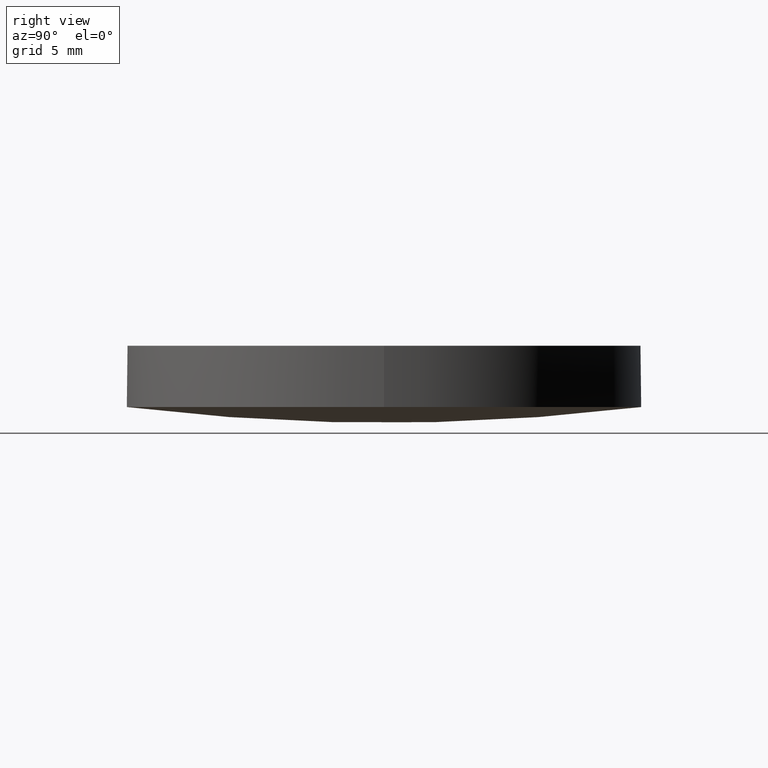
[diagram: clean part render]
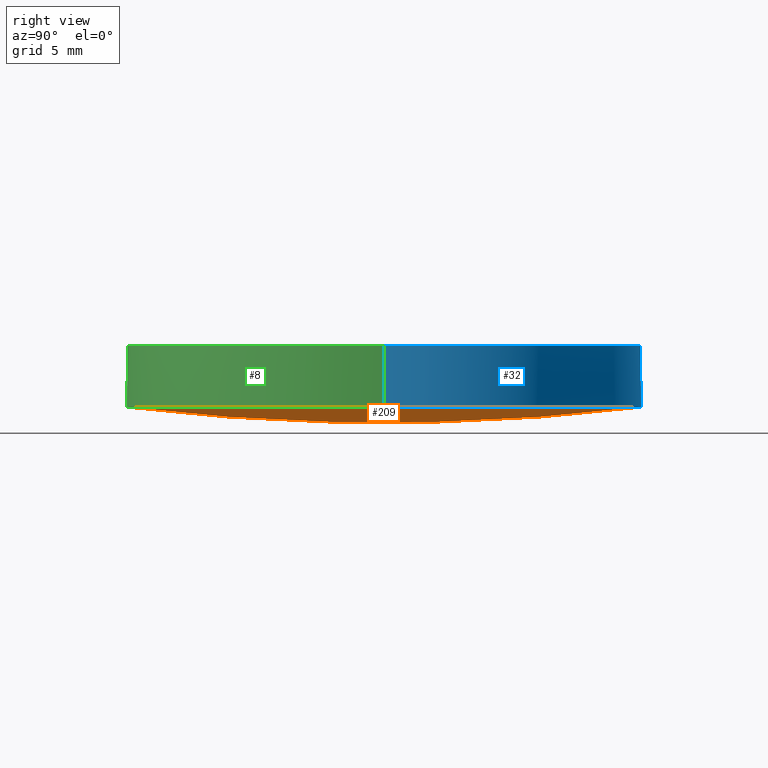
[diagram: same view with three faces highlighted in distinct colors, each labeled with its STEP entity id]
A machine part, right view with three faces highlighted in distinct colors.
Their STEP definitions:

[orange] entity #209 — the highlighted face is a freeform B-spline surface patch.
#1 = AXIS2_PLACEMENT_3D ( 'NONE', #111, #147, #37 ) ;
#2 = CARTESIAN_POINT ( 'NONE',  ( -7.141133360578974500E-015, 12.85163307389536200, 0.7925073641889823800 ) ) ;
#4 = CARTESIAN_POINT ( 'NONE',  ( 4.282779587646916600, 4.305625555928885200, -0.2655102227782195600 ) ) ;
#5 = EDGE_LOOP ( 'NONE', ( #163, #85, #60 ) ) ;
#6 = CARTESIAN_POINT ( 'NONE',  ( -7.187737991352404900E-015, 12.70000000000003700, 0.7738472252775887600 ) ) ;
#17 = EDGE_CURVE ( 'NONE', #134, #123, #68, .T. ) ;
#20 = CARTESIAN_POINT ( 'NONE',  ( 12.69999999999999900, 2.442490654175340100E-015, 0.7738472252775809900 ) ) ;
#25 = CARTESIAN_POINT ( 'NONE',  ( 4.996003610813200500E-016, 2.442490654175340100E-015, 0.7738472252775809900 ) ) ;
#37 = DIRECTION ( 'NONE',  ( 1.000000000000000000, -8.881784197001252300E-016, 0.0000000000000000000 ) ) ;
#40 = CARTESIAN_POINT ( 'NONE',  ( 4.282779587646913900, -4.305625555928871900, -0.2655102227782205600 ) ) ;
#52 = CARTESIAN_POINT ( 'NONE',  ( 8.471195892815243800, 12.85163307389535900, 1.051903366798575500 ) ) ;
#60 = ORIENTED_EDGE ( 'NONE', *, *, #17, .T. ) ;
#66 = CIRCLE ( 'NONE', #232, 12.69999999999999900 ) ;
#68 = CIRCLE ( 'NONE', #1, 12.69999999999999900 ) ;
#72 = FACE_OUTER_BOUND ( 'NONE', #5, .T. ) ;
#73 = DIRECTION ( 'NONE',  ( -0.0000000000000000000, -0.0000000000000000000, -1.000000000000000000 ) ) ;
#74 = CARTESIAN_POINT ( 'NONE',  ( 8.557535269768374400, -4.305625555928873600, -0.003470427068712200700 ) ) ;
#85 = ORIENTED_EDGE ( 'NONE', *, *, #217, .T. ) ;
#86 = EDGE_CURVE ( 'NONE', #123, #165, #66, .T. ) ;
#93 =( BOUNDED_SURFACE ( )  B_SPLINE_SURFACE ( 3, 3, ( 
 ( #135, #153, #188, #119 ),
 ( #219, #40, #74, #116 ),
 ( #94, #4, #118, #136 ),
 ( #2, #178, #52, #199 ) ),
 .UNSPECIFIED., .F., .F., .F. ) 
 B_SPLINE_SURFACE_WITH_KNOTS ( ( 4, 4 ),
 ( 4, 4 ),
 ( 0.0000000000000000000, 1.000000000000000000 ),
 ( 0.0000000000000000000, 1.000000000000000000 ),
 .UNSPECIFIED. ) 
 GEOMETRIC_REPRESENTATION_ITEM ( )  RATIONAL_B_SPLINE_SURFACE ( (
 ( 1.000000000000000000, 0.9987509816368461700, 0.9987509816368461700, 1.000000000000000000),
 ( 0.9949489651740663900, 0.9937062556461631100, 0.9937062556461631100, 0.9949489651740663900),
 ( 0.9949489651740663900, 0.9937062556461631100, 0.9937062556461631100, 0.9949489651740663900),
 ( 1.000000000000000000, 0.9987509816368461700, 0.9987509816368461700, 1.000000000000000000) ) ) 
 REPRESENTATION_ITEM ( '' )  SURFACE ( )  );
#94 = CARTESIAN_POINT ( 'NONE',  ( -9.769281548708849800E-015, 4.305625555928887000, -0.2655102227782184500 ) ) ;
#95 = CARTESIAN_POINT ( 'NONE',  ( -1.424402699795791500E-014, -12.70000000000002100, 0.7738472252775887600 ) ) ;
#111 = CARTESIAN_POINT ( 'NONE',  ( 4.996003610813200500E-016, 2.442490654175340100E-015, 0.7738472252775809900 ) ) ;
#116 = CARTESIAN_POINT ( 'NONE',  ( 12.80824930132946300, -4.305625555928874500, 0.5196272868001470300 ) ) ;
#118 = CARTESIAN_POINT ( 'NONE',  ( 8.557535269768378000, 4.305625555928883400, -0.003470427068711117400 ) ) ;
#119 = CARTESIAN_POINT ( 'NONE',  ( 12.67902327658330600, -12.85163307389535000, 1.569723400905997000 ) ) ;
#123 = VERTEX_POINT ( 'NONE', #20 ) ;
#134 = VERTEX_POINT ( 'NONE', #6 ) ;
#135 = CARTESIAN_POINT ( 'NONE',  ( -1.428167172091404300E-014, -12.85163307389534600, 0.7925073641889823800 ) ) ;
#136 = CARTESIAN_POINT ( 'NONE',  ( 12.80824930132946300, 4.305625555928883400, 0.5196272868001481400 ) ) ;
#143 = AXIS2_PLACEMENT_3D ( 'NONE', #186, #198, #150 ) ;
#147 = DIRECTION ( 'NONE',  ( -0.0000000000000000000, -0.0000000000000000000, -1.000000000000000000 ) ) ;
#149 = DIRECTION ( 'NONE',  ( 1.000000000000000000, 0.0000000000000000000, 0.0000000000000000000 ) ) ;
#150 = DIRECTION ( 'NONE',  ( -2.778066538033659800E-016, -1.000000000000000000, 0.0000000000000000000 ) ) ;
#153 = CARTESIAN_POINT ( 'NONE',  ( 4.239569421452055000, -12.85163307389534800, 0.7925073641889814900 ) ) ;
#163 = ORIENTED_EDGE ( 'NONE', *, *, #86, .T. ) ;
#165 = VERTEX_POINT ( 'NONE', #95 ) ;
#178 = CARTESIAN_POINT ( 'NONE',  ( 4.239569421452062100, 12.85163307389535900, 0.7925073641889814900 ) ) ;
#185 = CIRCLE ( 'NONE', #143, 104.5999999999999900 ) ;
#186 = CARTESIAN_POINT ( 'NONE',  ( 1.421085471520200100E-014, 1.421085471520200100E-014, 104.5999999999999900 ) ) ;
#188 = CARTESIAN_POINT ( 'NONE',  ( 8.471195892815234900, -12.85163307389534800, 1.051903366798575500 ) ) ;
#198 = DIRECTION ( 'NONE',  ( 1.000000000000000000, -2.778066538033659800E-016, -2.400814875991999800E-016 ) ) ;
#199 = CARTESIAN_POINT ( 'NONE',  ( 12.67902327658331400, 12.85163307389535900, 1.569723400905997000 ) ) ;
#209 = ADVANCED_FACE ( 'NONE', ( #72 ), #93, .T. ) ;
#217 = EDGE_CURVE ( 'NONE', #165, #134, #185, .T. ) ;
#219 = CARTESIAN_POINT ( 'NONE',  ( -1.216154440515456900E-014, -4.305625555928871000, -0.2655102227782195600 ) ) ;
#232 = AXIS2_PLACEMENT_3D ( 'NONE', #25, #73, #149 ) ;

[blue] entity #32 — the highlighted cylindrical surface (partial cylindrical patch) has radius 12.7 mm, axis along (0, 0, 1).
#1 = AXIS2_PLACEMENT_3D ( 'NONE', #111, #147, #37 ) ;
#6 = CARTESIAN_POINT ( 'NONE',  ( -7.187737991352404900E-015, 12.70000000000003700, 0.7738472252775887600 ) ) ;
#11 = CIRCLE ( 'NONE', #31, 12.69999999999999900 ) ;
#16 = ORIENTED_EDGE ( 'NONE', *, *, #122, .F. ) ;
#17 = EDGE_CURVE ( 'NONE', #134, #123, #68, .T. ) ;
#20 = CARTESIAN_POINT ( 'NONE',  ( 12.69999999999999900, 2.442490654175340100E-015, 0.7738472252775809900 ) ) ;
#23 = LINE ( 'NONE', #133, #33 ) ;
#24 = FACE_OUTER_BOUND ( 'NONE', #216, .T. ) ;
#31 = AXIS2_PLACEMENT_3D ( 'NONE', #172, #148, #51 ) ;
#32 = ADVANCED_FACE ( 'NONE', ( #24 ), #206, .T. ) ;
#33 = VECTOR ( 'NONE', #77, 1000.000000000000000 ) ;
#37 = DIRECTION ( 'NONE',  ( 1.000000000000000000, -8.881784197001252300E-016, 0.0000000000000000000 ) ) ;
#45 = VERTEX_POINT ( 'NONE', #70 ) ;
#46 = ORIENTED_EDGE ( 'NONE', *, *, #69, .F. ) ;
#48 = DIRECTION ( 'NONE',  ( 1.000000000000000000, 0.0000000000000000000, 0.0000000000000000000 ) ) ;
#51 = DIRECTION ( 'NONE',  ( 1.000000000000000000, 8.881784197001252300E-016, 0.0000000000000000000 ) ) ;
#68 = CIRCLE ( 'NONE', #1, 12.69999999999999900 ) ;
#69 = EDGE_CURVE ( 'NONE', #152, #134, #11, .T. ) ;
#70 = CARTESIAN_POINT ( 'NONE',  ( 12.69999999999999900, 2.442490654175340100E-015, 3.799999999999999800 ) ) ;
#77 = DIRECTION ( 'NONE',  ( 0.0000000000000000000, 0.0000000000000000000, 1.000000000000000000 ) ) ;
#81 = EDGE_CURVE ( 'NONE', #234, #45, #187, .T. ) ;
#90 = CARTESIAN_POINT ( 'NONE',  ( 4.996003610813200500E-016, 2.442490654175340100E-015, 0.7738472252775809900 ) ) ;
#97 = DIRECTION ( 'NONE',  ( 0.0000000000000000000, 0.0000000000000000000, 1.000000000000000000 ) ) ;
#109 = LINE ( 'NONE', #146, #218 ) ;
#111 = CARTESIAN_POINT ( 'NONE',  ( 4.996003610813200500E-016, 2.442490654175340100E-015, 0.7738472252775809900 ) ) ;
#112 = DIRECTION ( 'NONE',  ( 0.0000000000000000000, 0.0000000000000000000, 1.000000000000000000 ) ) ;
#122 = EDGE_CURVE ( 'NONE', #123, #45, #109, .T. ) ;
#123 = VERTEX_POINT ( 'NONE', #20 ) ;
#126 = ORIENTED_EDGE ( 'NONE', *, *, #17, .F. ) ;
#133 = CARTESIAN_POINT ( 'NONE',  ( -12.69999999999999900, 3.997792089092478900E-015, 0.7738472252775809900 ) ) ;
#134 = VERTEX_POINT ( 'NONE', #6 ) ;
#137 = CARTESIAN_POINT ( 'NONE',  ( 4.996003610813200500E-016, 2.442490654175340100E-015, 3.799999999999999800 ) ) ;
#145 = ORIENTED_EDGE ( 'NONE', *, *, #81, .T. ) ;
#146 = CARTESIAN_POINT ( 'NONE',  ( 12.69999999999999900, 2.442490654175340100E-015, 0.7738472252775809900 ) ) ;
#147 = DIRECTION ( 'NONE',  ( -0.0000000000000000000, -0.0000000000000000000, -1.000000000000000000 ) ) ;
#148 = DIRECTION ( 'NONE',  ( -0.0000000000000000000, -0.0000000000000000000, -1.000000000000000000 ) ) ;
#152 = VERTEX_POINT ( 'NONE', #196 ) ;
#171 = AXIS2_PLACEMENT_3D ( 'NONE', #137, #201, #220 ) ;
#172 = CARTESIAN_POINT ( 'NONE',  ( 4.996003610813200500E-016, 2.442490654175340100E-015, 0.7738472252775809900 ) ) ;
#179 = CARTESIAN_POINT ( 'NONE',  ( -12.69999999999999900, 3.997792089092478900E-015, 3.799999999999999800 ) ) ;
#187 = CIRCLE ( 'NONE', #171, 12.69999999999999900 ) ;
#192 = AXIS2_PLACEMENT_3D ( 'NONE', #90, #112, #48 ) ;
#194 = EDGE_CURVE ( 'NONE', #152, #234, #23, .T. ) ;
#195 = ORIENTED_EDGE ( 'NONE', *, *, #194, .T. ) ;
#196 = CARTESIAN_POINT ( 'NONE',  ( -12.69999999999999900, 3.997792089092478900E-015, 0.7738472252775809900 ) ) ;
#201 = DIRECTION ( 'NONE',  ( -0.0000000000000000000, -0.0000000000000000000, -1.000000000000000000 ) ) ;
#206 = CYLINDRICAL_SURFACE ( 'NONE', #192, 12.69999999999999900 ) ;
#216 = EDGE_LOOP ( 'NONE', ( #46, #195, #145, #16, #126 ) ) ;
#218 = VECTOR ( 'NONE', #97, 1000.000000000000000 ) ;
#220 = DIRECTION ( 'NONE',  ( 1.000000000000000000, 0.0000000000000000000, 0.0000000000000000000 ) ) ;
#234 = VERTEX_POINT ( 'NONE', #179 ) ;

[green] entity #8 — the highlighted cylindrical surface (partial cylindrical patch) has radius 12.7 mm, axis along (0, 0, 1).
#7 = AXIS2_PLACEMENT_3D ( 'NONE', #115, #167, #21 ) ;
#8 = ADVANCED_FACE ( 'NONE', ( #96 ), #22, .T. ) ;
#19 = ORIENTED_EDGE ( 'NONE', *, *, #122, .T. ) ;
#20 = CARTESIAN_POINT ( 'NONE',  ( 12.69999999999999900, 2.442490654175340100E-015, 0.7738472252775809900 ) ) ;
#21 = DIRECTION ( 'NONE',  ( 1.000000000000000000, 0.0000000000000000000, 0.0000000000000000000 ) ) ;
#22 = CYLINDRICAL_SURFACE ( 'NONE', #7, 12.69999999999999900 ) ;
#23 = LINE ( 'NONE', #133, #33 ) ;
#25 = CARTESIAN_POINT ( 'NONE',  ( 4.996003610813200500E-016, 2.442490654175340100E-015, 0.7738472252775809900 ) ) ;
#33 = VECTOR ( 'NONE', #77, 1000.000000000000000 ) ;
#35 = CARTESIAN_POINT ( 'NONE',  ( 4.996003610813200500E-016, 2.442490654175340100E-015, 3.799999999999999800 ) ) ;
#38 = DIRECTION ( 'NONE',  ( -0.0000000000000000000, -0.0000000000000000000, -1.000000000000000000 ) ) ;
#39 = EDGE_LOOP ( 'NONE', ( #104, #175, #49, #19, #128 ) ) ;
#45 = VERTEX_POINT ( 'NONE', #70 ) ;
#49 = ORIENTED_EDGE ( 'NONE', *, *, #86, .F. ) ;
#56 = EDGE_CURVE ( 'NONE', #45, #234, #230, .T. ) ;
#66 = CIRCLE ( 'NONE', #232, 12.69999999999999900 ) ;
#70 = CARTESIAN_POINT ( 'NONE',  ( 12.69999999999999900, 2.442490654175340100E-015, 3.799999999999999800 ) ) ;
#73 = DIRECTION ( 'NONE',  ( -0.0000000000000000000, -0.0000000000000000000, -1.000000000000000000 ) ) ;
#77 = DIRECTION ( 'NONE',  ( 0.0000000000000000000, 0.0000000000000000000, 1.000000000000000000 ) ) ;
#86 = EDGE_CURVE ( 'NONE', #123, #165, #66, .T. ) ;
#95 = CARTESIAN_POINT ( 'NONE',  ( -1.424402699795791500E-014, -12.70000000000002100, 0.7738472252775887600 ) ) ;
#96 = FACE_OUTER_BOUND ( 'NONE', #39, .T. ) ;
#97 = DIRECTION ( 'NONE',  ( 0.0000000000000000000, 0.0000000000000000000, 1.000000000000000000 ) ) ;
#104 = ORIENTED_EDGE ( 'NONE', *, *, #194, .F. ) ;
#109 = LINE ( 'NONE', #146, #218 ) ;
#115 = CARTESIAN_POINT ( 'NONE',  ( 4.996003610813200500E-016, 2.442490654175340100E-015, 0.7738472252775809900 ) ) ;
#117 = CARTESIAN_POINT ( 'NONE',  ( 4.996003610813200500E-016, 2.442490654175340100E-015, 0.7738472252775809900 ) ) ;
#122 = EDGE_CURVE ( 'NONE', #123, #45, #109, .T. ) ;
#123 = VERTEX_POINT ( 'NONE', #20 ) ;
#128 = ORIENTED_EDGE ( 'NONE', *, *, #56, .T. ) ;
#129 = AXIS2_PLACEMENT_3D ( 'NONE', #35, #168, #132 ) ;
#131 = AXIS2_PLACEMENT_3D ( 'NONE', #117, #38, #173 ) ;
#132 = DIRECTION ( 'NONE',  ( 1.000000000000000000, 0.0000000000000000000, 0.0000000000000000000 ) ) ;
#133 = CARTESIAN_POINT ( 'NONE',  ( -12.69999999999999900, 3.997792089092478900E-015, 0.7738472252775809900 ) ) ;
#146 = CARTESIAN_POINT ( 'NONE',  ( 12.69999999999999900, 2.442490654175340100E-015, 0.7738472252775809900 ) ) ;
#149 = DIRECTION ( 'NONE',  ( 1.000000000000000000, 0.0000000000000000000, 0.0000000000000000000 ) ) ;
#152 = VERTEX_POINT ( 'NONE', #196 ) ;
#165 = VERTEX_POINT ( 'NONE', #95 ) ;
#167 = DIRECTION ( 'NONE',  ( 0.0000000000000000000, 0.0000000000000000000, 1.000000000000000000 ) ) ;
#168 = DIRECTION ( 'NONE',  ( -0.0000000000000000000, -0.0000000000000000000, -1.000000000000000000 ) ) ;
#173 = DIRECTION ( 'NONE',  ( 1.000000000000000000, 0.0000000000000000000, 0.0000000000000000000 ) ) ;
#175 = ORIENTED_EDGE ( 'NONE', *, *, #204, .F. ) ;
#179 = CARTESIAN_POINT ( 'NONE',  ( -12.69999999999999900, 3.997792089092478900E-015, 3.799999999999999800 ) ) ;
#194 = EDGE_CURVE ( 'NONE', #152, #234, #23, .T. ) ;
#196 = CARTESIAN_POINT ( 'NONE',  ( -12.69999999999999900, 3.997792089092478900E-015, 0.7738472252775809900 ) ) ;
#204 = EDGE_CURVE ( 'NONE', #165, #152, #224, .T. ) ;
#218 = VECTOR ( 'NONE', #97, 1000.000000000000000 ) ;
#224 = CIRCLE ( 'NONE', #131, 12.69999999999999900 ) ;
#230 = CIRCLE ( 'NONE', #129, 12.69999999999999900 ) ;
#232 = AXIS2_PLACEMENT_3D ( 'NONE', #25, #73, #149 ) ;
#234 = VERTEX_POINT ( 'NONE', #179 ) ;